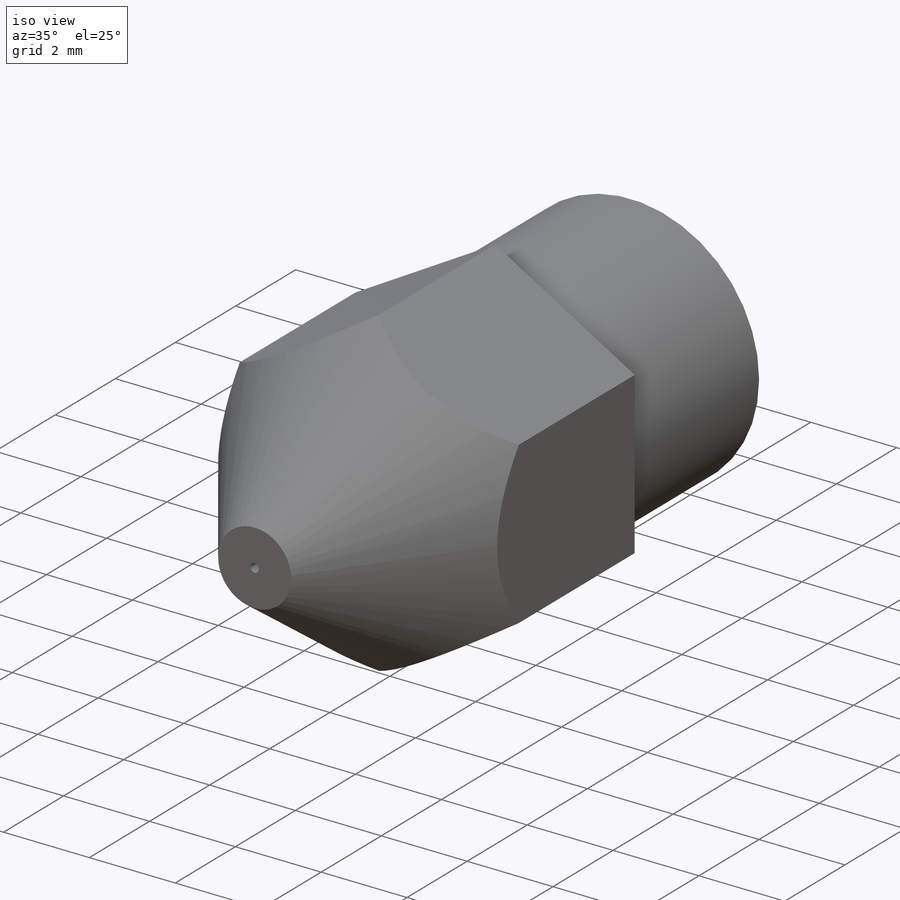
[diagram: iso view]
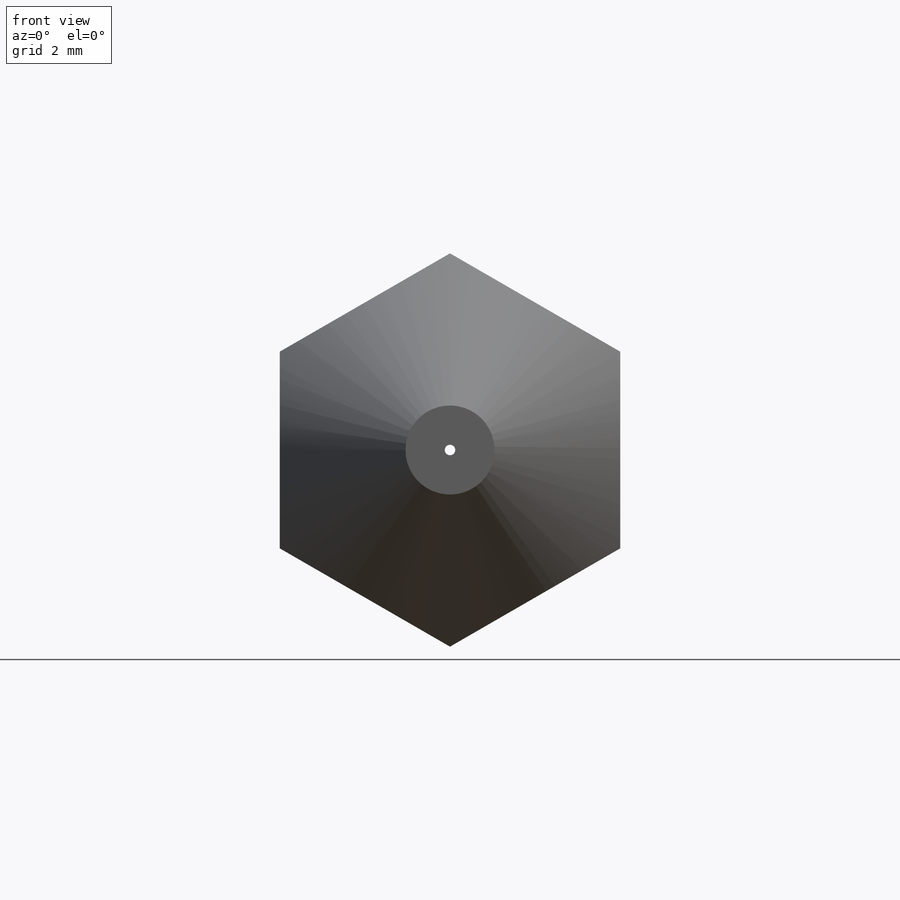
[diagram: front view]
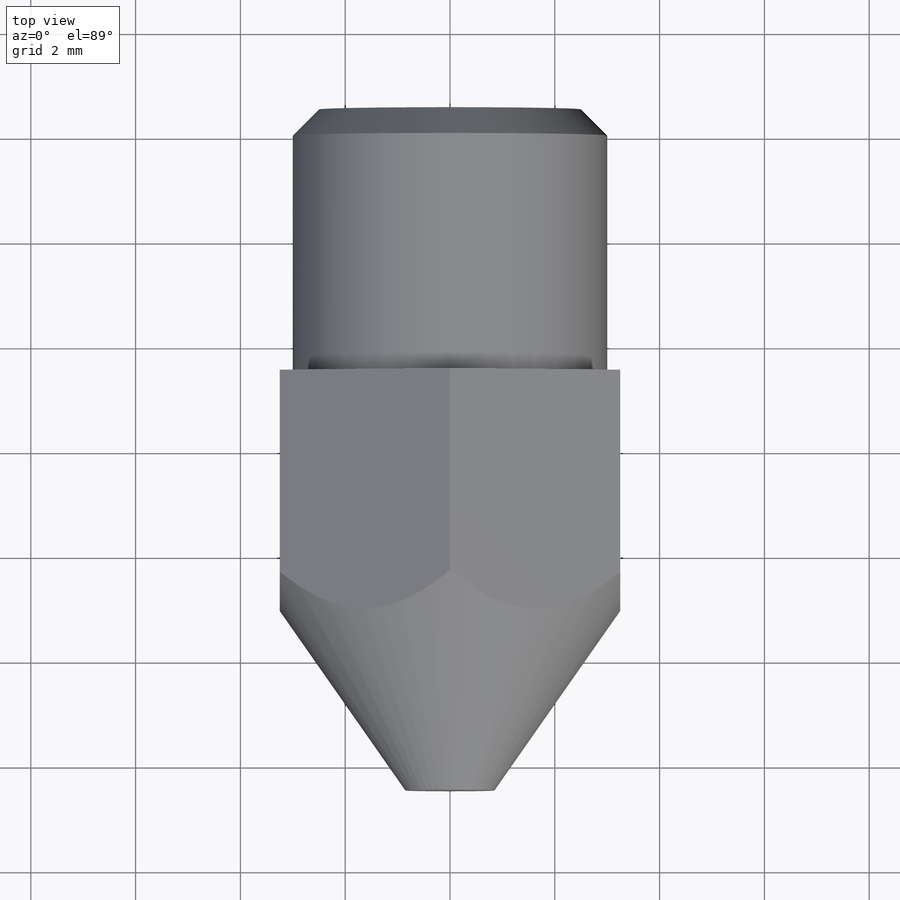
[diagram: top view]
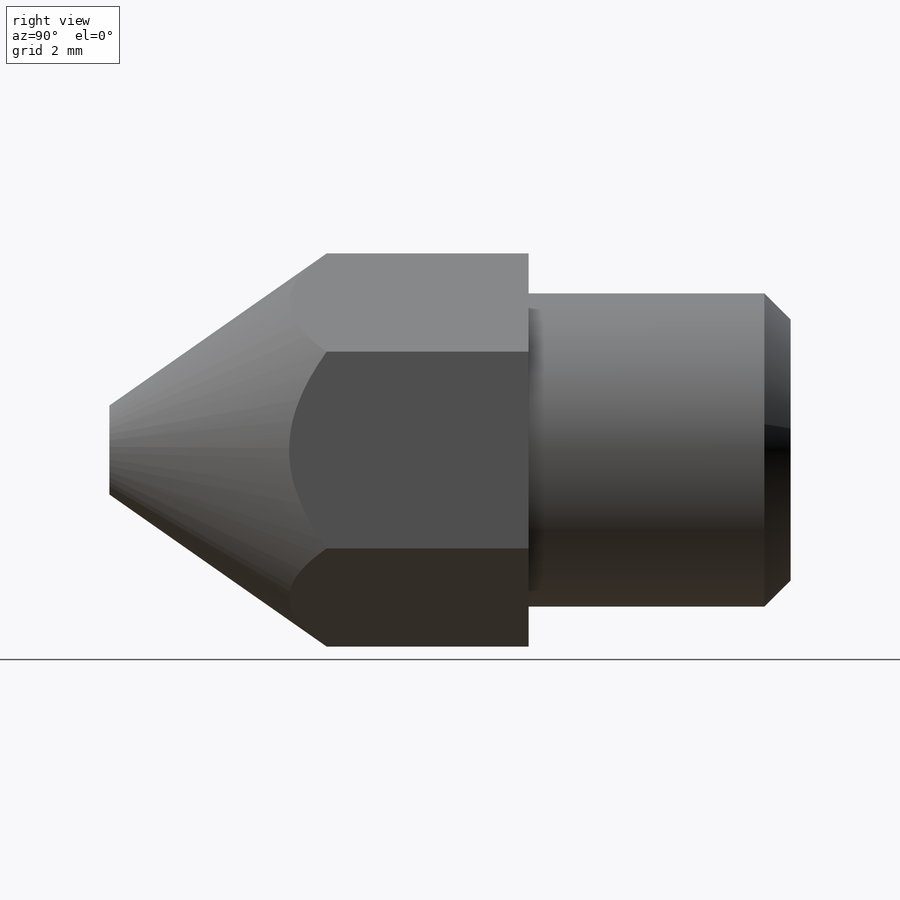
[diagram: right view]
SOLIDWORKS PART (.sldprt)
format: sldprt  version: not decoded by parser v0  size: 385,536 bytes
history: native  units: mm
features: sketch x3, cut_extrude x2, material x1, revolve x1, chamfer x1 (+11 scaffold rows collapsed)
feature tree (19):
  scaffold x11  (default folders/planes/origin — collapsed)
  material  "Brass"
  sketch  "Sketch1"  dims[c1.D1=1.0mm c1.D2=3.0mm c1.D3=4.0mm c1.D4=6.0mm c2.D4=135.0deg c2.D5=0.2mm c2.D6=1.0mm c2.D7=6.5mm c2.D8=~0.883883mm c2.D9=15.0mm c2.D10=6.0mm c3.D7=0.5mm c3.D8=1.0mm c3.D11=3.0mm c4.D11=30.0deg c4.D4=1.7mm c4.D6=21.5mm c4.D7=5.0mm c5.D6=13.0mm c5.D3=3.5mm c5.D9=4.0mm c5.D5=1.0mm]
  revolve  "Revolve1"  Angle=360deg
  sketch  "Sketch2"  dims[c1.D1=60.0deg c1.D2=30.0deg c2.D2=~6.928203mm c3.D2=30.0deg c3.D3=3.25mm c3.D4=~2.061994deg]
  cut_extrude  "Cut-Extrude2"  Depth=10mm
  chamfer  "Chamfer1"  Distance=0.5mm Angle=45deg
  sketch  "Sketch3"  dims[D1=0.2mm]
  cut_extrude  "Cut-Extrude3"  [1 undecoded]
decode coverage: 6 of 7 modeling features carry decoded parameters
note: ~ marks probable driven/reference dimensions
note: 1 parameter value undecoded
note: suppression state not decoded; provenance and decode notes live in map.json
